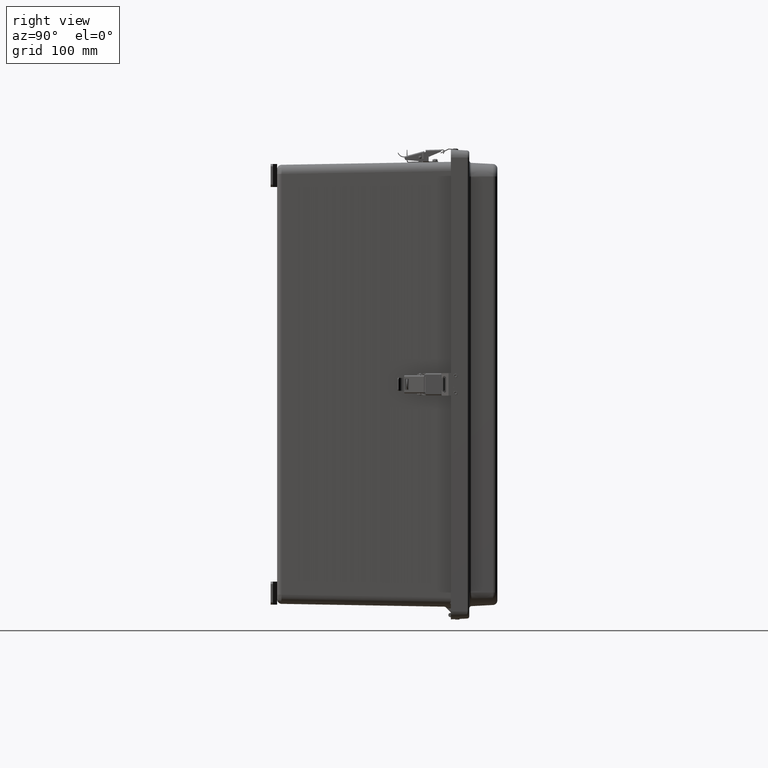
[diagram: clean part render]
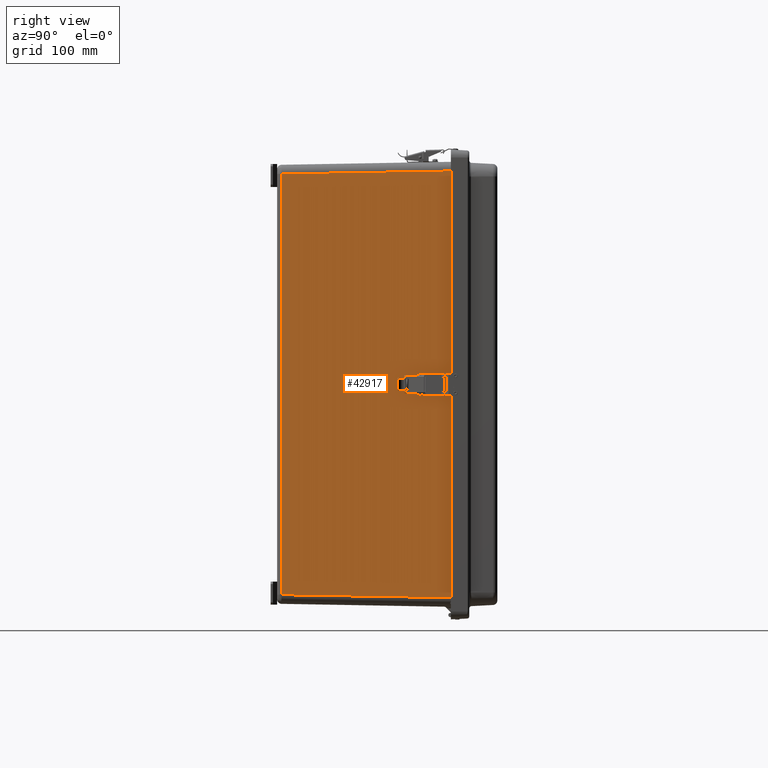
[diagram: same view with one face highlighted and labeled with its STEP entity id]
A machine part, right view. The second image highlights one B-rep face of the part: STEP entity #42917.
In plain terms, the highlighted planar face has unit normal (0.9998, -0.0175, 0).
Its self-contained STEP definition (entity closure, byte-faithful):
#995 = CARTESIAN_POINT ( 'NONE',  ( 11.95755507561197100, -9.879363101609323300, -11.45763122803377800 ) ) ;
#1520 = LINE ( 'NONE', #59015, #40743 ) ;
#1715 = VERTEX_POINT ( 'NONE', #58533 ) ;
#5280 = VECTOR ( 'NONE', #15860, 39.37007874015748100 ) ;
#6848 = EDGE_CURVE ( 'NONE', #1715, #28927, #8761, .T. ) ;
#8761 = LINE ( 'NONE', #25915, #48010 ) ;
#9960 = ORIENTED_EDGE ( 'NONE', *, *, #60405, .T. ) ;
#13951 = CARTESIAN_POINT ( 'NONE',  ( 11.95755507561197100, -9.879363101609323300, 11.45763122803378000 ) ) ;
#15631 = EDGE_CURVE ( 'NONE', #53203, #1715, #1520, .T. ) ;
#15860 = DIRECTION ( 'NONE',  ( 0.0000000000000000000, 0.0000000000000000000, -1.000000000000000000 ) ) ;
#17009 = EDGE_CURVE ( 'NONE', #19971, #53203, #35983, .T. ) ;
#17777 = ORIENTED_EDGE ( 'NONE', *, *, #6848, .T. ) ;
#17842 = AXIS2_PLACEMENT_3D ( 'NONE', #57707, #28356, #62652 ) ;
#18316 = LINE ( 'NONE', #25528, #5280 ) ;
#19168 = FACE_OUTER_BOUND ( 'NONE', #41672, .T. ) ;
#19971 = VERTEX_POINT ( 'NONE', #995 ) ;
#20831 = CARTESIAN_POINT ( 'NONE',  ( 12.13015222368495000, 0.008720889070032987100, -11.63022837610675500 ) ) ;
#20979 = DIRECTION ( 'NONE',  ( -0.01744974916068272100, -0.9996954598818874600, -0.01744974916068271800 ) ) ;
#22870 = VECTOR ( 'NONE', #50270, 39.37007874015748900 ) ;
#25528 = CARTESIAN_POINT ( 'NONE',  ( 11.95755507561197100, -9.879363101609319700, -11.45334362002360400 ) ) ;
#25915 = CARTESIAN_POINT ( 'NONE',  ( 12.12276520541255000, -0.4144811043213853000, 11.62284135783435900 ) ) ;
#28356 = DIRECTION ( 'NONE',  ( 0.9998476951563912700, -0.01745240643728355000, 0.0000000000000000000 ) ) ;
#28927 = VERTEX_POINT ( 'NONE', #13951 ) ;
#29654 = DIRECTION ( 'NONE',  ( -0.0000000000000000000, -0.0000000000000000000, 1.000000000000000000 ) ) ;
#31326 = ORIENTED_EDGE ( 'NONE', *, *, #15631, .T. ) ;
#35983 = LINE ( 'NONE', #20831, #22870 ) ;
#40743 = VECTOR ( 'NONE', #29654, 39.37007874015748100 ) ;
#41568 = CARTESIAN_POINT ( 'NONE',  ( 12.12134862575777200, -0.4956368983906790900, -11.62142477817957700 ) ) ;
#41672 = EDGE_LOOP ( 'NONE', ( #54163, #31326, #17777, #9960 ) ) ;
#42917 = ADVANCED_FACE ( 'NONE', ( #19168 ), #47905, .T. ) ;
#47905 = PLANE ( 'NONE',  #17842 ) ;
#48010 = VECTOR ( 'NONE', #20979, 39.37007874015748900 ) ;
#50270 = DIRECTION ( 'NONE',  ( 0.01744974916068272100, 0.9996954598818874600, -0.01744974916068271800 ) ) ;
#53203 = VERTEX_POINT ( 'NONE', #41568 ) ;
#54163 = ORIENTED_EDGE ( 'NONE', *, *, #17009, .T. ) ;
#57707 = CARTESIAN_POINT ( 'NONE',  ( 12.12999999999999900, 0.0000000000000000000, -12.13000000000000300 ) ) ;
#58533 = CARTESIAN_POINT ( 'NONE',  ( 12.12134862575776900, -0.4956368983906790400, 11.62142477817957700 ) ) ;
#59015 = CARTESIAN_POINT ( 'NONE',  ( 12.12134862575776900, -0.4956368983906792000, -12.13000000000000300 ) ) ;
#60405 = EDGE_CURVE ( 'NONE', #28927, #19971, #18316, .T. ) ;
#62652 = DIRECTION ( 'NONE',  ( 0.01745240643728355000, 0.9998476951563912700, 0.0000000000000000000 ) ) ;